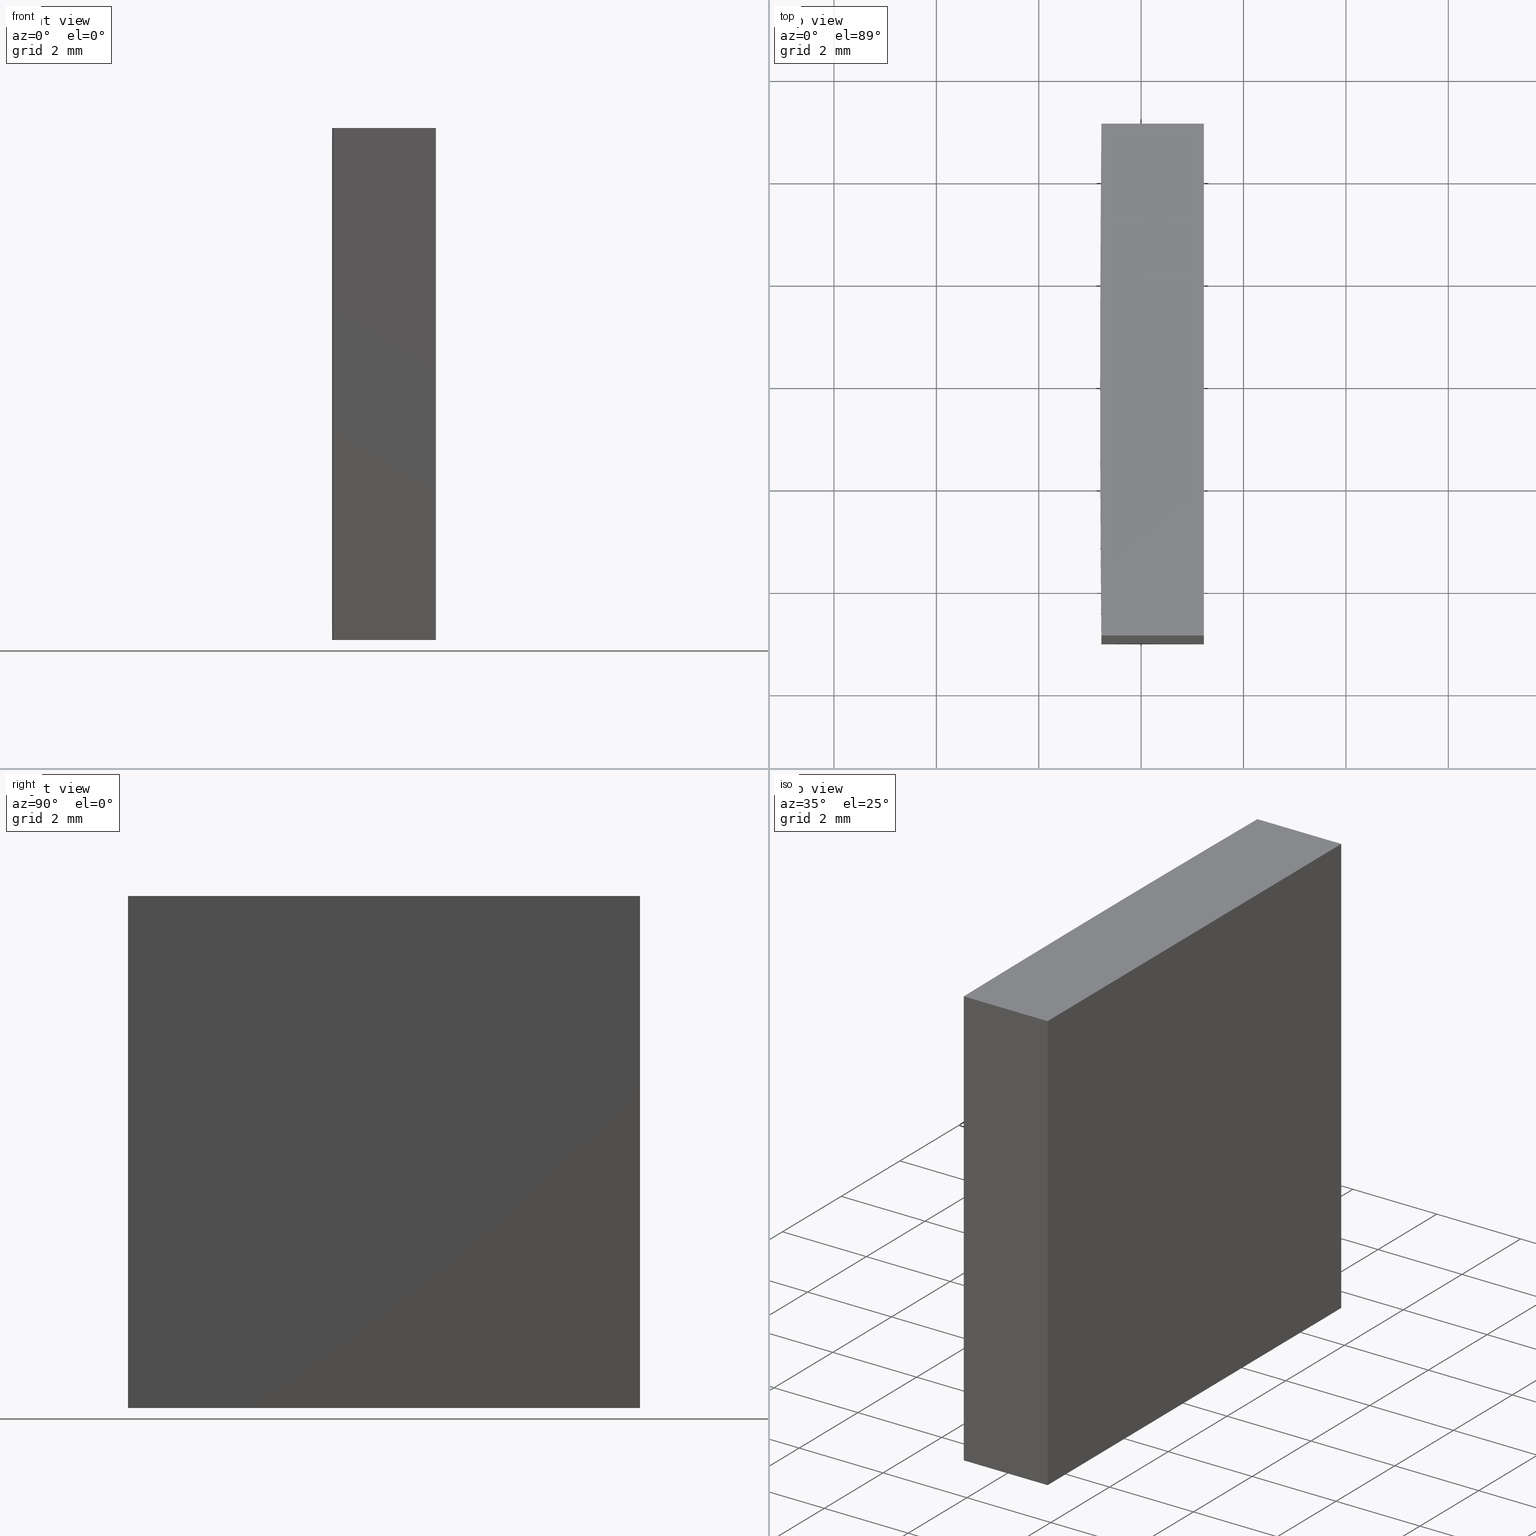
[diagram: canonical four-view strip — front | top / right | iso, engineering-drawing reading convention]
A machine part, canonical four-view strip (front | top / right | iso — engineering-drawing reading convention). The complete STEP part file that produces these views, byte-faithful:
ISO-10303-21;
HEADER;
FILE_DESCRIPTION (( 'STEP AP203' ),
    '1' );
FILE_NAME ('155528.STEP',
    '2024-05-13T03:42:55',
    ( '' ),
    ( '' ),
    'SwSTEP 2.0',
    'SolidWorks 2020',
    '' );
FILE_SCHEMA (( 'CONFIG_CONTROL_DESIGN' ));
ENDSEC;

DATA;
#1 = EDGE_LOOP ( 'NONE', ( #62, #172, #50, #48 ) ) ;
#2 = VECTOR ( 'NONE', #32, 1000.000000000000000 ) ;
#3 = ORIENTED_EDGE ( 'NONE', *, *, #152, .F. ) ;
#4 = AXIS2_PLACEMENT_3D ( 'NONE', #148, #101, #126 ) ;
#5 = PERSON_AND_ORGANIZATION ( #80, #231 ) ;
#6 = ADVANCED_FACE ( 'NONE', ( #46 ), #75, .F. ) ;
#7 = LINE ( 'NONE', #98, #264 ) ;
#8 = CALENDAR_DATE ( 2024, 13, 5 ) ;
#9 = EDGE_LOOP ( 'NONE', ( #153, #64, #87, #194 ) ) ;
#10 = APPROVAL_STATUS ( 'not_yet_approved' ) ;
#11 = LINE ( 'NONE', #14, #2 ) ;
#12 = AXIS2_PLACEMENT_3D ( 'NONE', #247, #83, #206 ) ;
#13 = FACE_OUTER_BOUND ( 'NONE', #214, .T. ) ;
#14 = CARTESIAN_POINT ( 'NONE',  ( -516.7758121274639507, 5.000000000000004441, 10.00000000000000000 ) ) ;
#15 = FACE_OUTER_BOUND ( 'NONE', #123, .T. ) ;
#16 = PRODUCT ( '155528', '155528', '', ( #28 ) ) ;
#17 = PRODUCT_DEFINITION ( 'δ֪', '', #188, #92 ) ;
#18 = CARTESIAN_POINT ( 'NONE',  ( -514.7758121274639507, 5.000000000000000888, 0.000000000000000000 ) ) ;
#19 = PLANE ( 'NONE',  #195 ) ;
#20 = LOCAL_TIME ( 11, 42, 55.00000000000000000, #200 ) ;
#21 = DIRECTION ( 'NONE',  ( 1.000000000000000000, 0.000000000000000000, 0.000000000000000000 ) ) ;
#22 = APPROVAL_DATE_TIME ( #160, #170 ) ;
#23 = APPROVAL_PERSON_ORGANIZATION ( #5, #170, #273 ) ;
#24 = ORIENTED_EDGE ( 'NONE', *, *, #104, .T. ) ;
#25 = COORDINATED_UNIVERSAL_TIME_OFFSET ( 8, 0, .AHEAD. ) ;
#26 = VECTOR ( 'NONE', #216, 1000.000000000000000 ) ;
#27 = DIRECTION ( 'NONE',  ( 0.000000000000000000, 0.000000000000000000, 1.000000000000000000 ) ) ;
#28 = MECHANICAL_CONTEXT ( 'NONE', #193, 'mechanical' ) ;
#29 = LINE ( 'NONE', #256, #26 ) ;
#30 = APPROVAL_STATUS ( 'not_yet_approved' ) ;
#31 = ORIENTED_EDGE ( 'NONE', *, *, #36, .T. ) ;
#32 = DIRECTION ( 'NONE',  ( -1.000000000000000000, 1.734723475976805517E-15, -0.000000000000000000 ) ) ;
#33 = VECTOR ( 'NONE', #149, 1000.000000000000000 ) ;
#34 = ORIENTED_EDGE ( 'NONE', *, *, #211, .T. ) ;
#35 = DIRECTION ( 'NONE',  ( 1.000000000000000000, 1.734723475976805517E-15, 0.000000000000000000 ) ) ;
#36 = EDGE_CURVE ( 'NONE', #66, #164, #144, .T. ) ;
#37 = DIRECTION ( 'NONE',  ( 0.000000000000000000, 0.000000000000000000, 1.000000000000000000 ) ) ;
#38 = AXIS2_PLACEMENT_3D ( 'NONE', #237, #165, #224 ) ;
#39 = DIRECTION ( 'NONE',  ( 0.000000000000000000, 0.000000000000000000, 1.000000000000000000 ) ) ;
#40 =( NAMED_UNIT ( * ) SI_UNIT ( $, .STERADIAN. ) SOLID_ANGLE_UNIT ( ) );
#41 = EDGE_CURVE ( 'NONE', #221, #252, #11, .T. ) ;
#42 = APPROVAL ( #10, 'δָ��' ) ;
#43 = DATE_AND_TIME ( #255, #20 ) ;
#44 = ORIENTED_EDGE ( 'NONE', *, *, #232, .T. ) ;
#45 = VERTEX_POINT ( 'NONE', #242 ) ;
#46 = FACE_OUTER_BOUND ( 'NONE', #88, .T. ) ;
#47 = DATE_TIME_ROLE ( 'classification_date' ) ;
#48 = ORIENTED_EDGE ( 'NONE', *, *, #86, .T. ) ;
#49 = CC_DESIGN_APPROVAL ( #42, ( #145 ) ) ;
#50 = ORIENTED_EDGE ( 'NONE', *, *, #211, .F. ) ;
#51 = AXIS2_PLACEMENT_3D ( 'NONE', #176, #53, #197 ) ;
#52 = DIRECTION ( 'NONE',  ( -1.000000000000000000, 1.734723475976805517E-15, -0.000000000000000000 ) ) ;
#53 = DIRECTION ( 'NONE',  ( 0.000000000000000000, 0.000000000000000000, 1.000000000000000000 ) ) ;
#54 = EDGE_CURVE ( 'NONE', #115, #137, #7, .T. ) ;
#55 = CARTESIAN_POINT ( 'NONE',  ( 0.000000000000000000, 0.000000000000000000, 0.000000000000000000 ) ) ;
#56 = AXIS2_PLACEMENT_3D ( 'NONE', #55, #60, #21 ) ;
#57 = PLANE ( 'NONE',  #4 ) ;
#58 = EDGE_CURVE ( 'NONE', #66, #45, #146, .T. ) ;
#59 = DIRECTION ( 'NONE',  ( 1.000000000000000000, 0.000000000000000000, 0.000000000000000000 ) ) ;
#60 = DIRECTION ( 'NONE',  ( 0.000000000000000000, 0.000000000000000000, 1.000000000000000000 ) ) ;
#61 = EDGE_LOOP ( 'NONE', ( #74, #157, #222, #241 ) ) ;
#62 = ORIENTED_EDGE ( 'NONE', *, *, #136, .T. ) ;
#63 = VECTOR ( 'NONE', #84, 1000.000000000000000 ) ;
#64 = ORIENTED_EDGE ( 'NONE', *, *, #262, .F. ) ;
#65 = CC_DESIGN_PERSON_AND_ORGANIZATION_ASSIGNMENT ( #189, #171, ( #145 ) ) ;
#66 = VERTEX_POINT ( 'NONE', #122 ) ;
#67 = DATE_AND_TIME ( #233, #91 ) ;
#68 = CARTESIAN_POINT ( 'NONE',  ( -516.7758121274639507, -5.000000000000004441, 0.000000000000000000 ) ) ;
#69 = MANIFOLD_SOLID_BREP ( '͹̨-����1', #140 ) ;
#70 = APPROVAL_ROLE ( '' ) ;
#71 = CIRCLE ( 'NONE', #112, 516.7999999999999545 ) ;
#72 = DIRECTION ( 'NONE',  ( 1.000000000000000000, 1.734723475976805517E-15, 0.000000000000000000 ) ) ;
#73 = ORIENTED_EDGE ( 'NONE', *, *, #54, .F. ) ;
#74 = ORIENTED_EDGE ( 'NONE', *, *, #36, .F. ) ;
#75 = PLANE ( 'NONE',  #168 ) ;
#76 = CIRCLE ( 'NONE', #192, 516.7999999999999545 ) ;
#77 = CARTESIAN_POINT ( 'NONE',  ( 0.000000000000000000, 0.000000000000000000, 10.00000000000000000 ) ) ;
#78 = PRODUCT_DEFINITION_SHAPE ( 'NONE', 'NONE',  #17 ) ;
#79 = DIRECTION ( 'NONE',  ( -1.734723475976805517E-15, -1.000000000000000000, 0.000000000000000000 ) ) ;
#80 = PERSON ( 'δָ��', 'δָ��', 'δָ��', ('δָ��'), ('δָ��'), ('δָ��') ) ;
#81 = APPLICATION_CONTEXT ( 'configuration controlled 3d designs of mechanical parts and assemblies' ) ;
#82 = DIRECTION ( 'NONE',  ( -1.000000000000000000, -1.734723475976805517E-15, 0.000000000000000000 ) ) ;
#83 = DIRECTION ( 'NONE',  ( -0.000000000000000000, -0.000000000000000000, -1.000000000000000000 ) ) ;
#84 = DIRECTION ( 'NONE',  ( -0.000000000000000000, -0.000000000000000000, -1.000000000000000000 ) ) ;
#85 = DATE_AND_TIME ( #230, #213 ) ;
#86 = EDGE_CURVE ( 'NONE', #164, #121, #240, .T. ) ;
#87 = ORIENTED_EDGE ( 'NONE', *, *, #244, .T. ) ;
#88 = EDGE_LOOP ( 'NONE', ( #3, #73, #110, #143, #274 ) ) ;
#89 = ORIENTED_EDGE ( 'NONE', *, *, #41, .T. ) ;
#90 = ADVANCED_FACE ( 'NONE', ( #13 ), #142, .T. ) ;
#91 = LOCAL_TIME ( 11, 42, 55.00000000000000000, #25 ) ;
#92 = DESIGN_CONTEXT ( 'detailed design', #81, 'design' ) ;
#93 = SECURITY_CLASSIFICATION_LEVEL ( 'unclassified' ) ;
#94 = ORIENTED_EDGE ( 'NONE', *, *, #155, .T. ) ;
#95 = SHAPE_DEFINITION_REPRESENTATION ( #78, #113 ) ;
#96 = DIRECTION ( 'NONE',  ( 0.000000000000000000, 0.000000000000000000, 1.000000000000000000 ) ) ;
#97 = CIRCLE ( 'NONE', #38, 516.7999999999999545 ) ;
#98 = CARTESIAN_POINT ( 'NONE',  ( -516.7758121274639507, 5.000000000000004441, 0.000000000000000000 ) ) ;
#99 = CYLINDRICAL_SURFACE ( 'NONE', #234, 516.7999999999999545 ) ;
#100 = CARTESIAN_POINT ( 'NONE',  ( 0.000000000000000000, 0.000000000000000000, 10.00000000000000000 ) ) ;
#101 = DIRECTION ( 'NONE',  ( -1.000000000000000000, 0.000000000000000000, 0.000000000000000000 ) ) ;
#102 = CARTESIAN_POINT ( 'NONE',  ( -514.7758121274639507, 5.000000000000000888, 10.00000000000000000 ) ) ;
#103 = CARTESIAN_POINT ( 'NONE',  ( -516.7758121274639507, 5.000000000000004441, 10.00000000000000000 ) ) ;
#104 = EDGE_CURVE ( 'NONE', #190, #221, #29, .T. ) ;
#105 = FACE_OUTER_BOUND ( 'NONE', #253, .T. ) ;
#106 = CC_DESIGN_APPROVAL ( #215, ( #188 ) ) ;
#107 = APPLICATION_PROTOCOL_DEFINITION ( 'international standard', 'config_control_design', 1994, #193 ) ;
#108 = CC_DESIGN_DATE_AND_TIME_ASSIGNMENT ( #43, #47, ( #145 ) ) ;
#109 = PERSON_AND_ORGANIZATION_ROLE ( 'design_owner' ) ;
#110 = ORIENTED_EDGE ( 'NONE', *, *, #155, .F. ) ;
#111 = PERSON_AND_ORGANIZATION ( #80, #231 ) ;
#112 = AXIS2_PLACEMENT_3D ( 'NONE', #77, #37, #130 ) ;
#113 = ADVANCED_BREP_SHAPE_REPRESENTATION ( '155528', ( #69, #56 ), #254 ) ;
#114 = ORIENTED_EDGE ( 'NONE', *, *, #262, .T. ) ;
#115 = VERTEX_POINT ( 'NONE', #120 ) ;
#116 = COORDINATED_UNIVERSAL_TIME_OFFSET ( 8, 0, .AHEAD. ) ;
#117 = CARTESIAN_POINT ( 'NONE',  ( 0.000000000000000000, 0.000000000000000000, 0.000000000000000000 ) ) ;
#118 = COORDINATED_UNIVERSAL_TIME_OFFSET ( 8, 0, .AHEAD. ) ;
#119 = ADVANCED_FACE ( 'NONE', ( #177 ), #99, .T. ) ;
#120 = CARTESIAN_POINT ( 'NONE',  ( -514.7758121274639507, 5.000000000000000888, 0.000000000000000000 ) ) ;
#121 = VERTEX_POINT ( 'NONE', #68 ) ;
#122 = CARTESIAN_POINT ( 'NONE',  ( -516.7999999999999545, 0.000000000000000000, 10.00000000000000000 ) ) ;
#123 = EDGE_LOOP ( 'NONE', ( #94, #158, #260, #44 ) ) ;
#124 = CC_DESIGN_PERSON_AND_ORGANIZATION_ASSIGNMENT ( #210, #151, ( #188 ) ) ;
#125 = CARTESIAN_POINT ( 'NONE',  ( -514.7758121274639507, 5.000000000000000888, 10.00000000000000000 ) ) ;
#126 = DIRECTION ( 'NONE',  ( 0.000000000000000000, 0.000000000000000000, 1.000000000000000000 ) ) ;
#127 = VECTOR ( 'NONE', #35, 1000.000000000000000 ) ;
#128 = CARTESIAN_POINT ( 'NONE',  ( -516.7758121274639507, -5.000000000000004441, 10.00000000000000000 ) ) ;
#129 = CARTESIAN_POINT ( 'NONE',  ( -514.7758121274639507, -5.000000000000000888, 10.00000000000000000 ) ) ;
#130 = DIRECTION ( 'NONE',  ( 1.000000000000000000, 0.000000000000000000, 0.000000000000000000 ) ) ;
#131 = VECTOR ( 'NONE', #147, 1000.000000000000000 ) ;
#132 = COORDINATED_UNIVERSAL_TIME_OFFSET ( 8, 0, .AHEAD. ) ;
#133 = PERSON_AND_ORGANIZATION ( #80, #231 ) ;
#134 = PERSON_AND_ORGANIZATION ( #80, #231 ) ;
#135 = ORIENTED_EDGE ( 'NONE', *, *, #220, .T. ) ;
#136 = EDGE_CURVE ( 'NONE', #121, #235, #263, .T. ) ;
#137 = VERTEX_POINT ( 'NONE', #261 ) ;
#138 = UNCERTAINTY_MEASURE_WITH_UNIT (LENGTH_MEASURE( 1.000000000000000082E-05 ), #271, 'distance_accuracy_value', 'NONE');
#139 = ORIENTED_EDGE ( 'NONE', *, *, #244, .F. ) ;
#140 = CLOSED_SHELL ( 'NONE', ( #159, #119, #268, #208, #249, #90, #6 ) ) ;
#141 = APPROVAL_STATUS ( 'not_yet_approved' ) ;
#142 = PLANE ( 'NONE',  #51 ) ;
#143 = ORIENTED_EDGE ( 'NONE', *, *, #136, .F. ) ;
#144 = CIRCLE ( 'NONE', #270, 516.7999999999999545 ) ;
#145 = SECURITY_CLASSIFICATION ( '', '', #93 ) ;
#146 = LINE ( 'NONE', #199, #186 ) ;
#147 = DIRECTION ( 'NONE',  ( -0.000000000000000000, 1.000000000000000000, -0.000000000000000000 ) ) ;
#148 = CARTESIAN_POINT ( 'NONE',  ( -514.7758121274639507, 5.000000000000000888, 10.00000000000000000 ) ) ;
#149 = DIRECTION ( 'NONE',  ( -0.000000000000000000, -0.000000000000000000, -1.000000000000000000 ) ) ;
#150 = CYLINDRICAL_SURFACE ( 'NONE', #12, 516.7999999999999545 ) ;
#151 = PERSON_AND_ORGANIZATION_ROLE ( 'design_supplier' ) ;
#152 = EDGE_CURVE ( 'NONE', #137, #45, #97, .T. ) ;
#153 = ORIENTED_EDGE ( 'NONE', *, *, #58, .F. ) ;
#154 = PERSON_AND_ORGANIZATION_ROLE ( 'creator' ) ;
#155 = EDGE_CURVE ( 'NONE', #235, #115, #243, .T. ) ;
#156 = CC_DESIGN_APPROVAL ( #170, ( #17 ) ) ;
#157 = ORIENTED_EDGE ( 'NONE', *, *, #58, .T. ) ;
#158 = ORIENTED_EDGE ( 'NONE', *, *, #220, .F. ) ;
#159 = ADVANCED_FACE ( 'NONE', ( #267 ), #150, .T. ) ;
#160 = DATE_AND_TIME ( #8, #178 ) ;
#161 = DIRECTION ( 'NONE',  ( -0.000000000000000000, -0.000000000000000000, -1.000000000000000000 ) ) ;
#162 = VECTOR ( 'NONE', #72, 1000.000000000000000 ) ;
#163 = ORIENTED_EDGE ( 'NONE', *, *, #54, .T. ) ;
#164 = VERTEX_POINT ( 'NONE', #169 ) ;
#165 = DIRECTION ( 'NONE',  ( 0.000000000000000000, 0.000000000000000000, 1.000000000000000000 ) ) ;
#166 = CARTESIAN_POINT ( 'NONE',  ( 0.000000000000000000, 0.000000000000000000, 10.00000000000000000 ) ) ;
#167 = FACE_OUTER_BOUND ( 'NONE', #1, .T. ) ;
#168 = AXIS2_PLACEMENT_3D ( 'NONE', #117, #27, #201 ) ;
#169 = CARTESIAN_POINT ( 'NONE',  ( -516.7758121274639507, -5.000000000000004441, 10.00000000000000000 ) ) ;
#170 = APPROVAL ( #141, 'δָ��' ) ;
#171 = PERSON_AND_ORGANIZATION_ROLE ( 'classification_officer' ) ;
#172 = ORIENTED_EDGE ( 'NONE', *, *, #232, .F. ) ;
#173 = VECTOR ( 'NONE', #218, 1000.000000000000000 ) ;
#174 = AXIS2_PLACEMENT_3D ( 'NONE', #103, #79, #269 ) ;
#175 = CALENDAR_DATE ( 2024, 13, 5 ) ;
#176 = CARTESIAN_POINT ( 'NONE',  ( 0.000000000000000000, 0.000000000000000000, 10.00000000000000000 ) ) ;
#177 = FACE_OUTER_BOUND ( 'NONE', #9, .T. ) ;
#178 = LOCAL_TIME ( 11, 42, 55.00000000000000000, #118 ) ;
#179 = DIRECTION ( 'NONE',  ( -0.000000000000000000, -0.000000000000000000, -1.000000000000000000 ) ) ;
#180 = DIRECTION ( 'NONE',  ( -1.000000000000000000, 0.000000000000000000, 0.000000000000000000 ) ) ;
#181 = ORIENTED_EDGE ( 'NONE', *, *, #41, .F. ) ;
#182 = CC_DESIGN_PERSON_AND_ORGANIZATION_ASSIGNMENT ( #219, #212, ( #188 ) ) ;
#183 = LINE ( 'NONE', #272, #127 ) ;
#184 = PLANE ( 'NONE',  #174 ) ;
#185 = CARTESIAN_POINT ( 'NONE',  ( 0.000000000000000000, 0.000000000000000000, 0.000000000000000000 ) ) ;
#186 = VECTOR ( 'NONE', #179, 1000.000000000000000 ) ;
#187 = CARTESIAN_POINT ( 'NONE',  ( -516.7758121274639507, 5.000000000000004441, 10.00000000000000000 ) ) ;
#188 = PRODUCT_DEFINITION_FORMATION_WITH_SPECIFIED_SOURCE ( '�κ�', '', #16, .NOT_KNOWN. ) ;
#189 = PERSON_AND_ORGANIZATION ( #80, #231 ) ;
#190 = VERTEX_POINT ( 'NONE', #229 ) ;
#191 = DATE_AND_TIME ( #175, #265 ) ;
#192 = AXIS2_PLACEMENT_3D ( 'NONE', #185, #39, #59 ) ;
#193 = APPLICATION_CONTEXT ( 'configuration controlled 3d designs of mechanical parts and assemblies' ) ;
#194 = ORIENTED_EDGE ( 'NONE', *, *, #152, .T. ) ;
#195 = AXIS2_PLACEMENT_3D ( 'NONE', #128, #226, #82 ) ;
#196 = CC_DESIGN_PERSON_AND_ORGANIZATION_ASSIGNMENT ( #217, #109, ( #16 ) ) ;
#197 = DIRECTION ( 'NONE',  ( 1.000000000000000000, 0.000000000000000000, -0.000000000000000000 ) ) ;
#198 = DATE_TIME_ROLE ( 'creation_date' ) ;
#199 = CARTESIAN_POINT ( 'NONE',  ( -516.7999999999999545, 0.000000000000000000, 10.00000000000000000 ) ) ;
#200 = COORDINATED_UNIVERSAL_TIME_OFFSET ( 8, 0, .AHEAD. ) ;
#201 = DIRECTION ( 'NONE',  ( 1.000000000000000000, 0.000000000000000000, -0.000000000000000000 ) ) ;
#202 = CARTESIAN_POINT ( 'NONE',  ( -516.7758121274639507, -5.000000000000004441, 10.00000000000000000 ) ) ;
#203 = DIRECTION ( 'NONE',  ( 1.000000000000000000, 0.000000000000000000, 0.000000000000000000 ) ) ;
#204 = CC_DESIGN_PERSON_AND_ORGANIZATION_ASSIGNMENT ( #111, #154, ( #17 ) ) ;
#205 = CARTESIAN_POINT ( 'NONE',  ( -516.7758121274639507, 5.000000000000004441, 10.00000000000000000 ) ) ;
#206 = DIRECTION ( 'NONE',  ( -1.000000000000000000, 0.000000000000000000, 0.000000000000000000 ) ) ;
#207 = CARTESIAN_POINT ( 'NONE',  ( -514.7758121274639507, -5.000000000000000888, 0.000000000000000000 ) ) ;
#208 = ADVANCED_FACE ( 'NONE', ( #15 ), #57, .F. ) ;
#209 = APPROVAL_PERSON_ORGANIZATION ( #134, #42, #250 ) ;
#210 = PERSON_AND_ORGANIZATION ( #80, #231 ) ;
#211 = EDGE_CURVE ( 'NONE', #164, #190, #183, .T. ) ;
#212 = PERSON_AND_ORGANIZATION_ROLE ( 'creator' ) ;
#213 = LOCAL_TIME ( 11, 42, 55.00000000000000000, #132 ) ;
#214 = EDGE_LOOP ( 'NONE', ( #114, #31, #34, #24, #89 ) ) ;
#215 = APPROVAL ( #30, 'δָ��' ) ;
#216 = DIRECTION ( 'NONE',  ( -0.000000000000000000, 1.000000000000000000, -0.000000000000000000 ) ) ;
#217 = PERSON_AND_ORGANIZATION ( #80, #231 ) ;
#218 = DIRECTION ( 'NONE',  ( -0.000000000000000000, -0.000000000000000000, -1.000000000000000000 ) ) ;
#219 = PERSON_AND_ORGANIZATION ( #80, #231 ) ;
#220 = EDGE_CURVE ( 'NONE', #221, #115, #248, .T. ) ;
#221 = VERTEX_POINT ( 'NONE', #102 ) ;
#222 = ORIENTED_EDGE ( 'NONE', *, *, #227, .T. ) ;
#223 = APPROVAL_PERSON_ORGANIZATION ( #133, #215, #70 ) ;
#224 = DIRECTION ( 'NONE',  ( 1.000000000000000000, 0.000000000000000000, 0.000000000000000000 ) ) ;
#225 = LINE ( 'NONE', #129, #63 ) ;
#226 = DIRECTION ( 'NONE',  ( -1.734723475976805517E-15, 1.000000000000000000, 0.000000000000000000 ) ) ;
#227 = EDGE_CURVE ( 'NONE', #45, #121, #76, .T. ) ;
#228 = DIRECTION ( 'NONE',  ( -0.000000000000000000, -0.000000000000000000, -1.000000000000000000 ) ) ;
#229 = CARTESIAN_POINT ( 'NONE',  ( -514.7758121274639507, -5.000000000000000888, 10.00000000000000000 ) ) ;
#230 = CALENDAR_DATE ( 2024, 13, 5 ) ;
#231 = ORGANIZATION ( 'δָ��', 'δָ��', '' ) ;
#232 = EDGE_CURVE ( 'NONE', #190, #235, #225, .T. ) ;
#233 = CALENDAR_DATE ( 2024, 13, 5 ) ;
#234 = AXIS2_PLACEMENT_3D ( 'NONE', #166, #161, #180 ) ;
#235 = VERTEX_POINT ( 'NONE', #207 ) ;
#236 = APPLICATION_PROTOCOL_DEFINITION ( 'international standard', 'config_control_design', 1994, #81 ) ;
#237 = CARTESIAN_POINT ( 'NONE',  ( 0.000000000000000000, 0.000000000000000000, 0.000000000000000000 ) ) ;
#238 = VECTOR ( 'NONE', #228, 1000.000000000000000 ) ;
#239 = PRODUCT_RELATED_PRODUCT_CATEGORY ( 'detail', '', ( #16 ) ) ;
#240 = LINE ( 'NONE', #202, #173 ) ;
#241 = ORIENTED_EDGE ( 'NONE', *, *, #86, .F. ) ;
#242 = CARTESIAN_POINT ( 'NONE',  ( -516.7999999999999545, 0.000000000000000000, 0.000000000000000000 ) ) ;
#243 = LINE ( 'NONE', #18, #131 ) ;
#244 = EDGE_CURVE ( 'NONE', #252, #137, #266, .T. ) ;
#245 = CC_DESIGN_SECURITY_CLASSIFICATION ( #145, ( #188 ) ) ;
#246 =( NAMED_UNIT ( * ) PLANE_ANGLE_UNIT ( ) SI_UNIT ( $, .RADIAN. ) );
#247 = CARTESIAN_POINT ( 'NONE',  ( 0.000000000000000000, 0.000000000000000000, 10.00000000000000000 ) ) ;
#248 = LINE ( 'NONE', #125, #238 ) ;
#249 = ADVANCED_FACE ( 'NONE', ( #105 ), #184, .F. ) ;
#250 = APPROVAL_ROLE ( '' ) ;
#251 = APPROVAL_DATE_TIME ( #67, #42 ) ;
#252 = VERTEX_POINT ( 'NONE', #187 ) ;
#253 = EDGE_LOOP ( 'NONE', ( #163, #139, #181, #135 ) ) ;
#254 =( GEOMETRIC_REPRESENTATION_CONTEXT ( 3 ) GLOBAL_UNCERTAINTY_ASSIGNED_CONTEXT ( ( #138 ) ) GLOBAL_UNIT_ASSIGNED_CONTEXT ( ( #271, #246, #40 ) ) REPRESENTATION_CONTEXT ( 'NONE', 'WORKASPACE' ) );
#255 = CALENDAR_DATE ( 2024, 13, 5 ) ;
#256 = CARTESIAN_POINT ( 'NONE',  ( -514.7758121274639507, 5.000000000000000888, 10.00000000000000000 ) ) ;
#257 = CC_DESIGN_DATE_AND_TIME_ASSIGNMENT ( #85, #198, ( #17 ) ) ;
#258 = APPROVAL_DATE_TIME ( #191, #215 ) ;
#259 = CARTESIAN_POINT ( 'NONE',  ( -516.7758121274639507, -5.000000000000004441, 0.000000000000000000 ) ) ;
#260 = ORIENTED_EDGE ( 'NONE', *, *, #104, .F. ) ;
#261 = CARTESIAN_POINT ( 'NONE',  ( -516.7758121274639507, 5.000000000000004441, 0.000000000000000000 ) ) ;
#262 = EDGE_CURVE ( 'NONE', #252, #66, #71, .T. ) ;
#263 = LINE ( 'NONE', #259, #162 ) ;
#264 = VECTOR ( 'NONE', #52, 1000.000000000000000 ) ;
#265 = LOCAL_TIME ( 11, 42, 55.00000000000000000, #116 ) ;
#266 = LINE ( 'NONE', #205, #33 ) ;
#267 = FACE_OUTER_BOUND ( 'NONE', #61, .T. ) ;
#268 = ADVANCED_FACE ( 'NONE', ( #167 ), #19, .F. ) ;
#269 = DIRECTION ( 'NONE',  ( 1.000000000000000000, -1.734723475976805517E-15, 0.000000000000000000 ) ) ;
#270 = AXIS2_PLACEMENT_3D ( 'NONE', #100, #96, #203 ) ;
#271 =( LENGTH_UNIT ( ) NAMED_UNIT ( * ) SI_UNIT ( .MILLI., .METRE. ) );
#272 = CARTESIAN_POINT ( 'NONE',  ( -516.7758121274639507, -5.000000000000004441, 10.00000000000000000 ) ) ;
#273 = APPROVAL_ROLE ( '' ) ;
#274 = ORIENTED_EDGE ( 'NONE', *, *, #227, .F. ) ;
ENDSEC;
END-ISO-10303-21;
